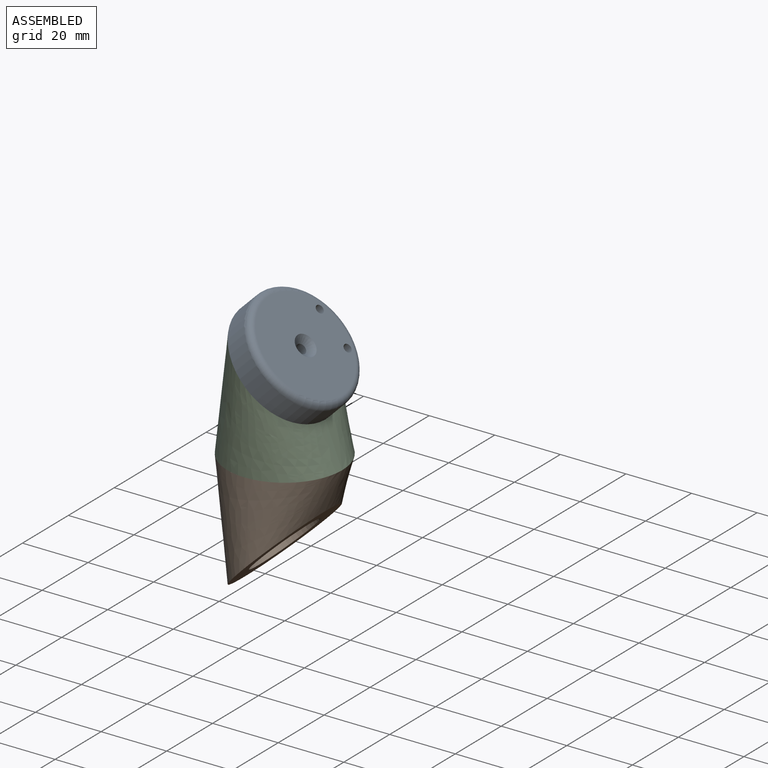
[diagram: assembled view]
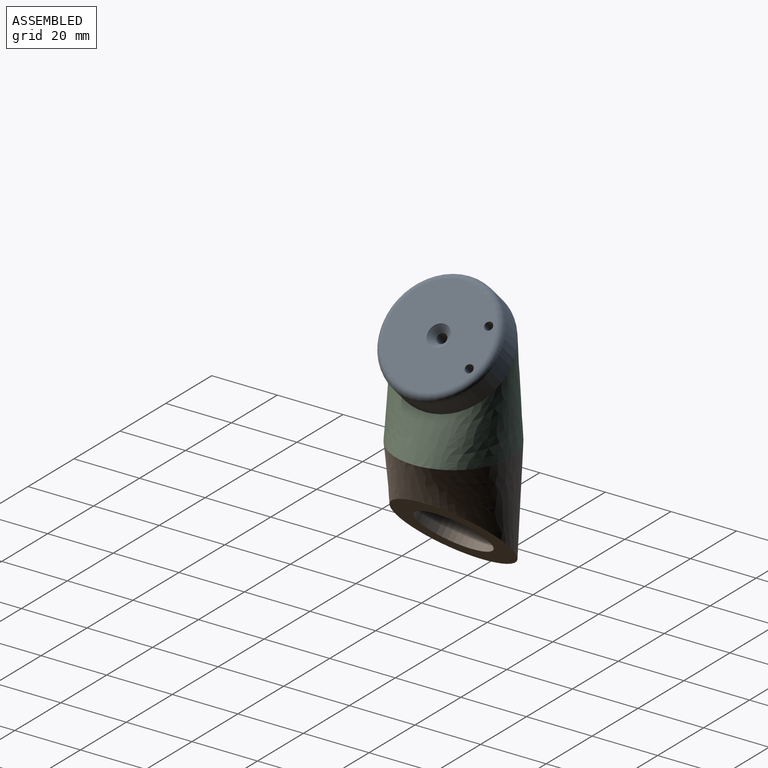
[diagram: assembled view, second angle]
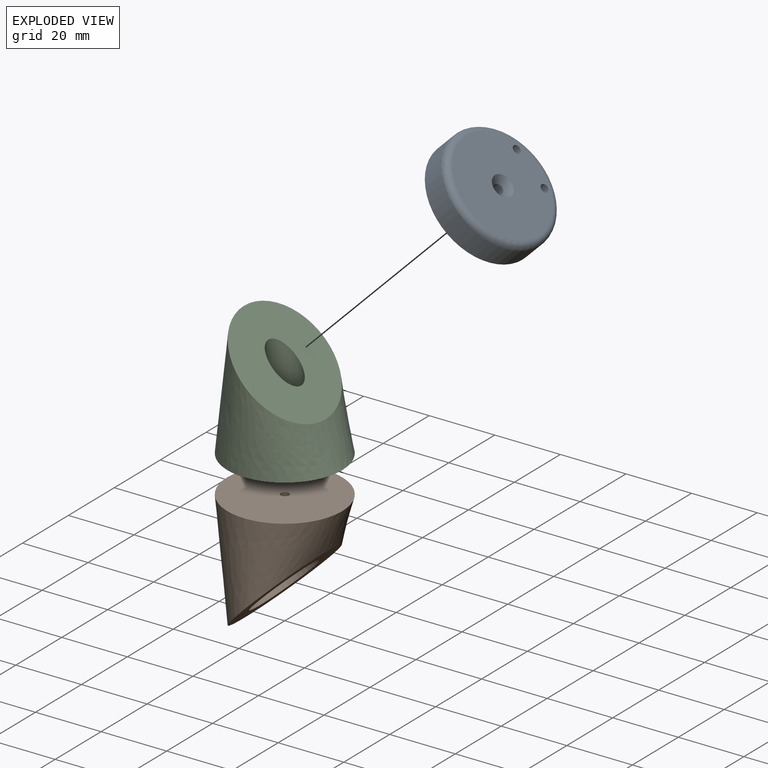
[diagram: exploded view]
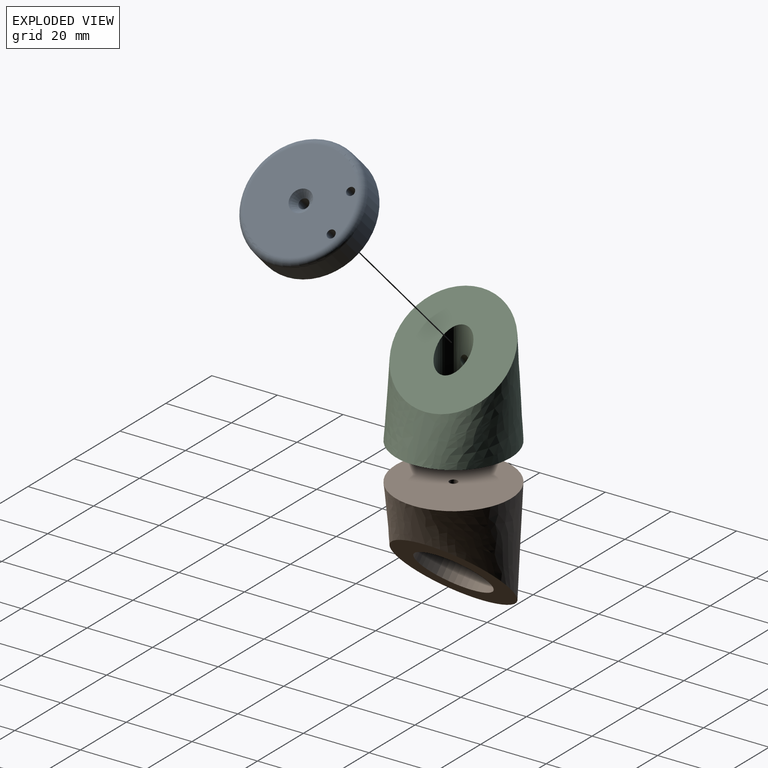
[diagram: exploded view, second angle]
ASSEMBLY  parts=3 mates=2
PART A: 8 faces, bbox 37.9x37.9x9 mm
  f0: cylinder r=17.5mm len=35mm, axis (0,0,-1), area 769.7mm2, adj f1,f7
  f1: plane 35x35mm, normal (0,0,1), area 945.2mm2, adj f0,f3,f5,f6
  f2: plane 31x31mm, normal (0,0,-1), area 709.5mm2, adj f4,f5,f6,f7
  f3: cylinder r=1.5mm len=7.14mm, axis (0,0,-1), area 67.3mm2, adj f1,f4
  f4: cone r=1.5mm half-angle=45deg, axis (0,0,-1), area 40.2mm2, adj f2,f3
  f5: cylinder r=1.25mm len=9mm, axis (0,0,-1), area 70.7mm2, adj f1,f2
  f6: cylinder r=1.25mm len=9mm, axis (0,0,-1), area 70.7mm2, adj f1,f2
  f7: torus R=15.5mm, axis (0,0,1), area 331.1mm2, adj f0,f2
PART B: 9 faces, bbox 35x35x37.4 mm
  f0: plane 35x35mm, normal (0,0,-1), area 957.1mm2, adj f2,f3
  f1: plane 35x24.75mm, normal (0.71,0,0.71), area 582mm2, adj f2,f5
  f2: bspline ~37.37x35mm, area 2581.6mm2, adj f0,f1
  f3: cylinder r=1.25mm len=12mm, axis (0,0,-1), area 94.2mm2, adj f0,f4
  f4: plane 2.5x2.5mm, normal (0,0,-1), area 4.9mm2, adj f3
  f5: cylinder r=11mm len=22mm, axis (0.71,0,0.71), area 414.7mm2, adj f1,f6
  f6: plane 22x15.56mm, normal (0.71,0,0.71), area 375.2mm2, adj f5,f7
  f7: cylinder r=1.25mm len=8.13mm, axis (0.71,0,0.71), area 70.7mm2, adj f6,f8
  f8: plane 2.5x1.77mm, normal (0.71,0,0.71), area 4.9mm2, adj f7
PART C: 8 faces, bbox 35x35x37.4 mm
  f0: cylinder r=1.25mm len=10mm, axis (0,0,-1), area 78.5mm2, adj f1,f5
  f1: plane 35x35mm, normal (0,0,-1), area 957.1mm2, adj f0,f3
  f2: plane 35x24.75mm, normal (0.71,0,0.71), area 851.1mm2, adj f3,f4
  f3: bspline ~37.37x35mm, area 2581.6mm2, adj f1,f2
  f4: cylinder r=5mm len=20.07mm, axis (0,0,-1), area 464.2mm2, adj f2,f5,f6
  f5: plane 10x10mm, normal (0,0,1), area 73.6mm2, adj f0,f4
  f6: cylinder r=1.25mm len=10.38mm, axis (0.71,0,0.71), area 86.7mm2, adj f4,f7
  f7: plane 2.5x1.77mm, normal (0.71,0,0.71), area 4.9mm2, adj f6
PLACE A rot(axis=(0.92,0,-0.38),180deg) t=(31.19,-46.88,37.89)mm
PLACE B rot(axis=(1,0,0),180deg) t=(24.82,-46.88,-18.48)mm
PLACE C t=(24.82,-46.88,31.52)mm
MATE revolute C.f6 <-> A.f0  axis (0.71,0,0.71) through (24.82,-46.88,31.52)mm
MATE revolute B.f3 <-> C.f0  axis (0,0,1) through (24.82,-46.88,6.52)mm
